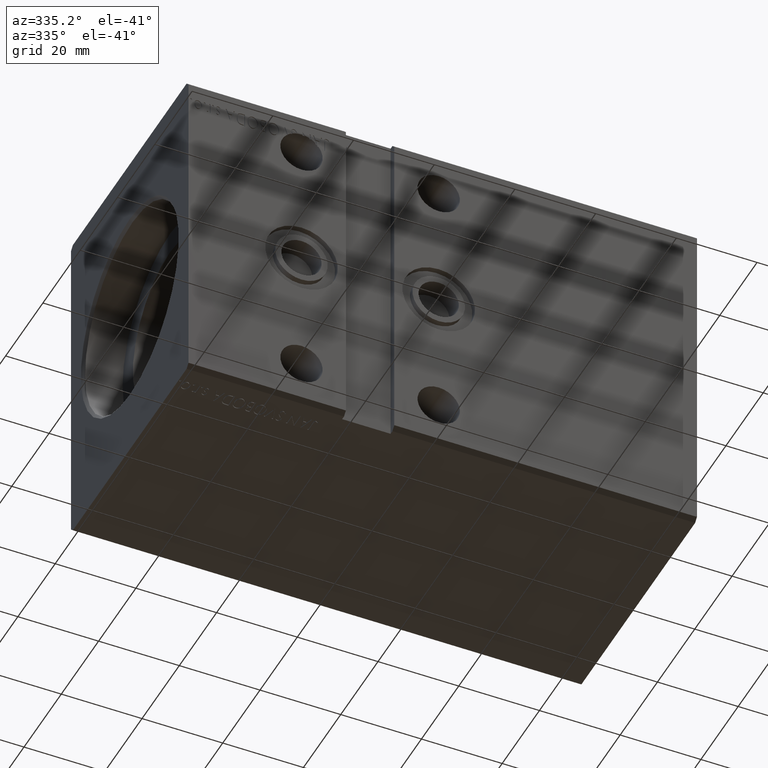
[diagram: clean part render]
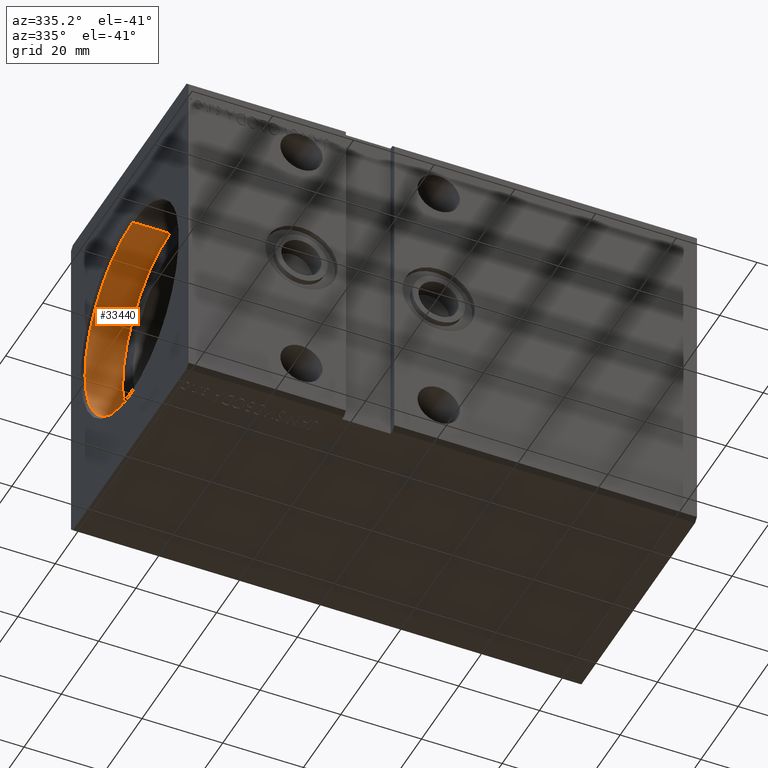
[diagram: same view with one face highlighted and labeled with its STEP entity id]
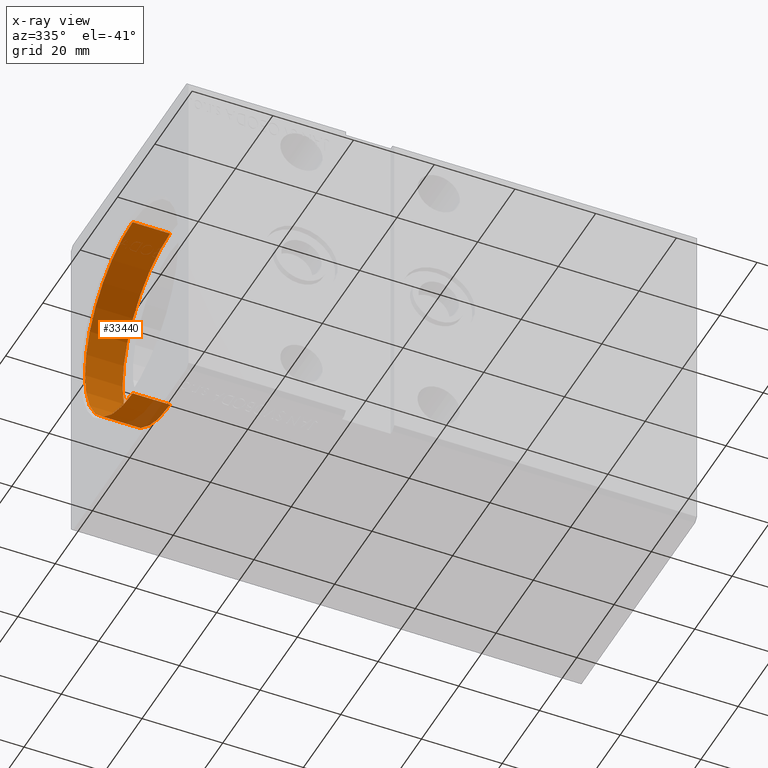
[diagram: x-ray of the same camera — body ghosted, the highlighted face saturated]
A machine part, auxiliary view. The second image highlights one B-rep face of the part: STEP entity #33440.
The next image is the same camera in x-ray: the body ghosted, the highlighted face saturated — about 6% of this face is hidden behind the body in this view.
In plain terms, the highlighted cylindrical surface (partial cylindrical patch) has radius 25.5 mm, axis along (-1, -0, -0).
Its self-contained STEP definition (entity closure, byte-faithful):
#326 = VECTOR ( 'NONE', #3150, 1000.000000000000000 ) ;
#705 = CARTESIAN_POINT ( 'NONE',  ( 10.00000000000000000, 3.122849337825750222E-15, -25.50000000000000000 ) ) ;
#957 = DIRECTION ( 'NONE',  ( -1.000000000000000000, 0.000000000000000000, 0.000000000000000000 ) ) ;
#3121 = AXIS2_PLACEMENT_3D ( 'NONE', #32206, #957, #26034 ) ;
#3150 = DIRECTION ( 'NONE',  ( -1.000000000000000000, -0.000000000000000000, -0.000000000000000000 ) ) ;
#4630 = CARTESIAN_POINT ( 'NONE',  ( 10.00000000000000000, 0.000000000000000000, 25.50000000000000000 ) ) ;
#5596 = VERTEX_POINT ( 'NONE', #24900 ) ;
#6570 = VERTEX_POINT ( 'NONE', #8545 ) ;
#7378 = DIRECTION ( 'NONE',  ( -1.000000000000000000, 0.000000000000000000, 0.000000000000000000 ) ) ;
#7553 = ORIENTED_EDGE ( 'NONE', *, *, #29353, .T. ) ;
#8545 = CARTESIAN_POINT ( 'NONE',  ( 0.6999999999999922951, 0.000000000000000000, 25.50000000000000000 ) ) ;
#8559 = EDGE_LOOP ( 'NONE', ( #35501, #18917, #7553, #38504 ) ) ;
#9009 = CIRCLE ( 'NONE', #3121, 25.50000000000000000 ) ;
#10251 = CARTESIAN_POINT ( 'NONE',  ( 0.6999999999999922951, 0.000000000000000000, 0.000000000000000000 ) ) ;
#13404 = LINE ( 'NONE', #25535, #326 ) ;
#13434 = CYLINDRICAL_SURFACE ( 'NONE', #14195, 25.50000000000000000 ) ;
#14195 = AXIS2_PLACEMENT_3D ( 'NONE', #38502, #36416, #39312 ) ;
#14792 = CARTESIAN_POINT ( 'NONE',  ( 10.00000000000000000, 3.122849337825750222E-15, -25.50000000000000000 ) ) ;
#15789 = VERTEX_POINT ( 'NONE', #705 ) ;
#18917 = ORIENTED_EDGE ( 'NONE', *, *, #36021, .F. ) ;
#20977 = LINE ( 'NONE', #14792, #23415 ) ;
#21387 = CIRCLE ( 'NONE', #37137, 25.50000000000000000 ) ;
#23415 = VECTOR ( 'NONE', #23648, 1000.000000000000000 ) ;
#23648 = DIRECTION ( 'NONE',  ( -1.000000000000000000, -0.000000000000000000, -0.000000000000000000 ) ) ;
#24900 = CARTESIAN_POINT ( 'NONE',  ( 0.6999999999999922951, 3.122849337825750222E-15, -25.50000000000000000 ) ) ;
#25535 = CARTESIAN_POINT ( 'NONE',  ( 10.00000000000000000, 0.000000000000000000, 25.50000000000000000 ) ) ;
#26034 = DIRECTION ( 'NONE',  ( 0.000000000000000000, 0.000000000000000000, 1.000000000000000000 ) ) ;
#29353 = EDGE_CURVE ( 'NONE', #31296, #6570, #13404, .T. ) ;
#31296 = VERTEX_POINT ( 'NONE', #4630 ) ;
#32049 = EDGE_CURVE ( 'NONE', #6570, #5596, #21387, .T. ) ;
#32146 = FACE_OUTER_BOUND ( 'NONE', #8559, .T. ) ;
#32206 = CARTESIAN_POINT ( 'NONE',  ( 10.00000000000000000, 0.000000000000000000, 0.000000000000000000 ) ) ;
#32438 = DIRECTION ( 'NONE',  ( 0.000000000000000000, 0.000000000000000000, -1.000000000000000000 ) ) ;
#33440 = ADVANCED_FACE ( 'NONE', ( #32146 ), #13434, .F. ) ;
#34594 = EDGE_CURVE ( 'NONE', #15789, #5596, #20977, .T. ) ;
#35501 = ORIENTED_EDGE ( 'NONE', *, *, #34594, .F. ) ;
#36021 = EDGE_CURVE ( 'NONE', #31296, #15789, #9009, .T. ) ;
#36416 = DIRECTION ( 'NONE',  ( -1.000000000000000000, -0.000000000000000000, -0.000000000000000000 ) ) ;
#37137 = AXIS2_PLACEMENT_3D ( 'NONE', #10251, #7378, #32438 ) ;
#38502 = CARTESIAN_POINT ( 'NONE',  ( 10.00000000000000000, 0.000000000000000000, 0.000000000000000000 ) ) ;
#38504 = ORIENTED_EDGE ( 'NONE', *, *, #32049, .T. ) ;
#39312 = DIRECTION ( 'NONE',  ( 0.000000000000000000, 0.000000000000000000, 1.000000000000000000 ) ) ;